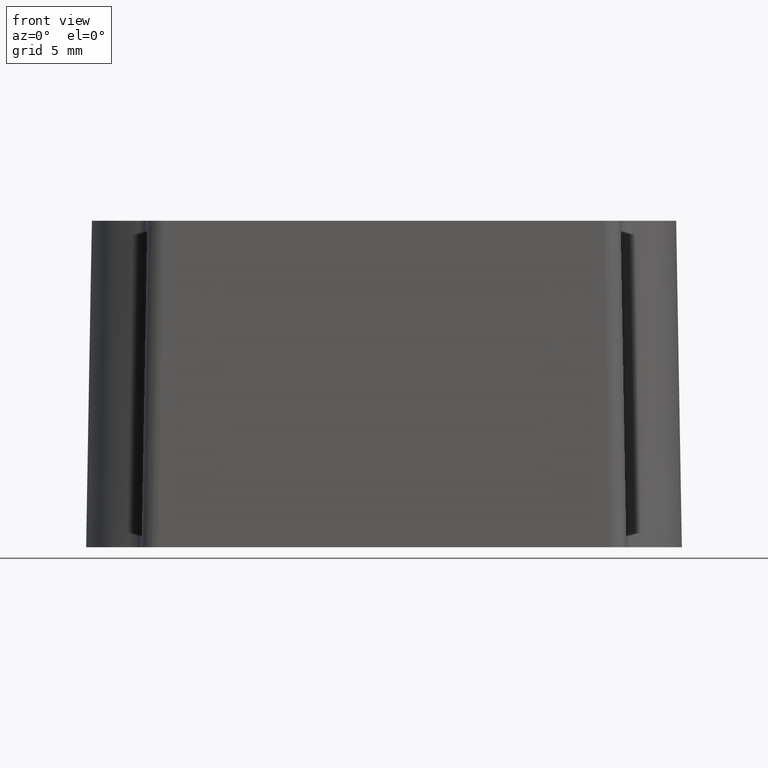
[diagram: clean part render]
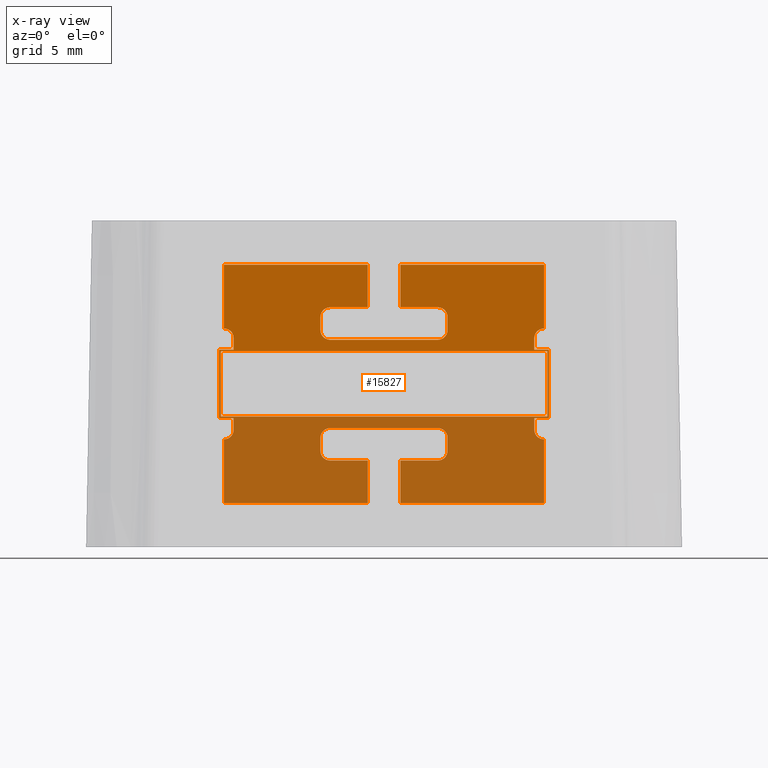
[diagram: x-ray — body ghosted, one internal face saturated and labeled with its STEP entity id]
A machine part, front view, then the same camera in x-ray: the body is ghosted and one INTERNAL B-rep face — a face not visible from any outside direction — is saturated and labeled: STEP entity #15827.
In plain terms, the highlighted planar face has unit normal (-0, -1, 0).
Its self-contained STEP definition (entity closure, byte-faithful):
#3564 = LINE ( 'NONE', #3610, #12898 ) ;
#3578 = LINE ( 'NONE', #3608, #12900 ) ;
#3579 = LINE ( 'NONE', #3606, #12909 ) ;
#3606 = CARTESIAN_POINT ( 'NONE',  ( 0.9948091789348029200, -7.750885740456789500, 1.394467274512204600 ) ) ;
#3607 = DIRECTION ( 'NONE',  ( 8.223640623691263700E-016, -0.9998476951563911600, -0.01745240643728354600 ) ) ;
#3608 = CARTESIAN_POINT ( 'NONE',  ( 3.894809178934796300, -7.750885740456802800, 1.394467274512214900 ) ) ;
#3609 = DIRECTION ( 'NONE',  ( -2.289834988289384900E-016, -0.9998476951563911600, -0.01745240643728354600 ) ) ;
#3610 = CARTESIAN_POINT ( 'NONE',  ( -10.09999999999991100, -2.856822064668583100, 1.479893473735876400 ) ) ;
#3611 = CARTESIAN_POINT ( 'NONE',  ( -10.09999999999990900, -4.846137394025159800, 1.445169845499260500 ) ) ;
#3612 = DIRECTION ( 'NONE',  ( 1.000000000000000000, 4.047862640411460800E-016, 3.636660784803152500E-015 ) ) ;
#3613 = LINE ( 'NONE', #3611, #12914 ) ;
#3614 = CARTESIAN_POINT ( 'NONE',  ( 1.000000000000093700, -4.851327424503257800, 1.445079253180325800 ) ) ;
#3615 = DIRECTION ( 'NONE',  ( -3.607484137458478000E-015, -0.01745240643728351500, 0.9998476951563912700 ) ) ;
#3616 = DIRECTION ( 'NONE',  ( 1.000000000000000000, 0.0000000000000000000, 0.0000000000000000000 ) ) ;
#3617 = DIRECTION ( 'NONE',  ( -1.000000000000000000, -5.141102439653392500E-016, -3.638569041970940200E-015 ) ) ;
#3620 = CARTESIAN_POINT ( 'NONE',  ( 3.300000000000094000, -4.251418807409423000, 1.455550697042704800 ) ) ;
#3621 = DIRECTION ( 'NONE',  ( 3.607484137458478000E-015, 0.01745240643728351500, -0.9998476951563912700 ) ) ;
#3622 = DIRECTION ( 'NONE',  ( 1.000000000000000000, 0.0000000000000000000, 3.645546205010808300E-015 ) ) ;
#3625 = CARTESIAN_POINT ( 'NONE',  ( -3.299999999999909200, 3.147454136747863900, 1.584698504678582600 ) ) ;
#3626 = DIRECTION ( 'NONE',  ( 3.607484137458478000E-015, 0.01745240643728351500, -0.9998476951563912700 ) ) ;
#3627 = DIRECTION ( 'NONE',  ( 1.000000000000000000, 7.291092410021594900E-016, 3.645546205010797300E-015 ) ) ;
#3628 = LINE ( 'NONE', #3636, #12930 ) ;
#3631 = LINE ( 'NONE', #3639, #12929 ) ;
#3636 = CARTESIAN_POINT ( 'NONE',  ( -9.999999999999998200, 1.847652133044552800, 1.562010376310083000 ) ) ;
#3638 = DIRECTION ( 'NONE',  ( -1.000000000000000000, 1.873501354054951200E-016, -1.907057520180671700E-016 ) ) ;
#3639 = CARTESIAN_POINT ( 'NONE',  ( 9.807752938723588400, -3.551434057030681500, 1.467768976309354000 ) ) ;
#3640 = DIRECTION ( 'NONE',  ( 2.289834988289384900E-016, 0.9998476951563911600, 0.01745240643728354600 ) ) ;
#3641 = LINE ( 'NONE', #3642, #12938 ) ;
#3642 = CARTESIAN_POINT ( 'NONE',  ( -10.09999999999990500, 2.552735550132132900, 1.574317653135159300 ) ) ;
#3643 = DIRECTION ( 'NONE',  ( -1.000000000000000000, 2.423957702401214500E-016, -3.625364180374396800E-015 ) ) ;
#3644 = LINE ( 'NONE', #3646, #12939 ) ;
#3646 = CARTESIAN_POINT ( 'NONE',  ( -10.09999999999991300, -3.546335390321863700, 1.467857973867729100 ) ) ;
#3647 = DIRECTION ( 'NONE',  ( -1.000000000000000000, -1.051549342586716100E-015, -3.647950076332339200E-015 ) ) ;
#3656 = CARTESIAN_POINT ( 'NONE',  ( 9.800102802507421300, -7.458683189823259100, 1.399567689005738700 ) ) ;
#3657 = CARTESIAN_POINT ( 'NONE',  ( 3.300000000000092200, 3.947332292872975500, 1.598660429828428200 ) ) ;
#3658 = DIRECTION ( 'NONE',  ( 3.607484137458478000E-015, 0.01745240643728351500, -0.9998476951563912700 ) ) ;
#3659 = DIRECTION ( 'NONE',  ( 1.000000000000000000, 0.0000000000000000000, 3.645546205010797300E-015 ) ) ;
#3663 = LINE ( 'NONE', #3656, #12942 ) ;
#3664 = CARTESIAN_POINT ( 'NONE',  ( 9.800000000000091300, -2.951616803706111000, 1.478238825411200900 ) ) ;
#3665 = DIRECTION ( 'NONE',  ( 3.607484137458478000E-015, 0.01745240643728351500, -0.9998476951563912700 ) ) ;
#3666 = DIRECTION ( 'NONE',  ( 1.000000000000000000, 0.0000000000000000000, 3.645546205010794900E-015 ) ) ;
#3667 = DIRECTION ( 'NONE',  ( 1.000000000000000000, -1.185043464242148100E-016, 3.627526713221152400E-015 ) ) ;
#3668 = LINE ( 'NONE', #3669, #12955 ) ;
#3669 = CARTESIAN_POINT ( 'NONE',  ( -10.00000000000000000, -2.151738647581012300, 1.492200750560948700 ) ) ;
#3670 = DIRECTION ( 'NONE',  ( 2.289834988289384900E-016, 0.9998476951563911600, 0.01745240643728354600 ) ) ;
#3671 = CARTESIAN_POINT ( 'NONE',  ( 3.300000000000092200, 3.147454136747862100, 1.584698504678603500 ) ) ;
#3672 = DIRECTION ( 'NONE',  ( 3.607484137458478000E-015, 0.01745240643728351500, -0.9998476951563912700 ) ) ;
#3673 = DIRECTION ( 'NONE',  ( 1.000000000000000000, 0.0000000000000000000, 3.645546205010797300E-015 ) ) ;
#3675 = LINE ( 'NONE', #3677, #12962 ) ;
#3676 = CARTESIAN_POINT ( 'NONE',  ( -10.00000000000000000, -2.151738647581012300, 1.492200750560948700 ) ) ;
#3677 = CARTESIAN_POINT ( 'NONE',  ( 9.205190821065386300, -7.750885740456803700, 1.394467274512235700 ) ) ;
#3678 = DIRECTION ( 'NONE',  ( 2.289834988289384900E-016, 0.9998476951563911600, 0.01745240643728354600 ) ) ;
#3679 = LINE ( 'NONE', #3680, #12973 ) ;
#3680 = CARTESIAN_POINT ( 'NONE',  ( -10.09999999999990500, 3.242248875785402000, 1.586353153003306600 ) ) ;
#3681 = LINE ( 'NONE', #3676, #12966 ) ;
#3682 = CARTESIAN_POINT ( 'NONE',  ( 1.000000000000092400, 4.547240909966811600, 1.609131873690793100 ) ) ;
#3683 = DIRECTION ( 'NONE',  ( -3.607484137458478000E-015, -0.01745240643728351500, 0.9998476951563912700 ) ) ;
#3684 = DIRECTION ( 'NONE',  ( 1.000000000000000000, 0.0000000000000000000, 0.0000000000000000000 ) ) ;
#3685 = DIRECTION ( 'NONE',  ( -1.000000000000000000, 1.873501354054951200E-016, -1.907057520180671700E-016 ) ) ;
#3686 = LINE ( 'NONE', #3687, #12969 ) ;
#3687 = CARTESIAN_POINT ( 'NONE',  ( -9.807752938723403700, 3.247347542494239700, 1.586442150561757900 ) ) ;
#3688 = DIRECTION ( 'NONE',  ( -7.304098846216862700E-019, -0.9998476951563911600, -0.01745240643728354600 ) ) ;
#3689 = LINE ( 'NONE', #3690, #12970 ) ;
#3690 = CARTESIAN_POINT ( 'NONE',  ( -10.49999999999991100, 1.947636902560195800, 1.563755616953814500 ) ) ;
#3691 = DIRECTION ( 'NONE',  ( 1.000000000000000000, -2.479003337235839900E-016, 3.659624290396251300E-015 ) ) ;
#3692 = LINE ( 'NONE', #3693, #12971 ) ;
#3693 = CARTESIAN_POINT ( 'NONE',  ( -9.800102802507241900, 7.154596675286810200, 1.654643437865373200 ) ) ;
#3694 = DIRECTION ( 'NONE',  ( -1.000000000000000000, 7.557218629577190500E-017, -3.628276096863703400E-015 ) ) ;
#3695 = CARTESIAN_POINT ( 'NONE',  ( -0.9999999999999080700, 4.547240909966813400, 1.609131873690786000 ) ) ;
#3696 = DIRECTION ( 'NONE',  ( -3.607484137458478000E-015, -0.01745240643728351500, 0.9998476951563912700 ) ) ;
#3697 = DIRECTION ( 'NONE',  ( 1.000000000000000000, 0.0000000000000000000, 0.0000000000000000000 ) ) ;
#3698 = CARTESIAN_POINT ( 'NONE',  ( -10.09999999999990900, 7.446799225920350400, 1.659743852358872800 ) ) ;
#3699 = DIRECTION ( 'NONE',  ( 1.000000000000000000, -3.072515182135921200E-016, 3.624232119082551400E-015 ) ) ;
#3701 = LINE ( 'NONE', #3698, #12980 ) ;
#3702 = CARTESIAN_POINT ( 'NONE',  ( -9.799999999999910100, 2.647530289169669300, 1.575972301459911000 ) ) ;
#3703 = DIRECTION ( 'NONE',  ( 3.607484137458478000E-015, 0.01745240643728351500, -0.9998476951563912700 ) ) ;
#3704 = DIRECTION ( 'NONE',  ( 1.000000000000000000, 0.0000000000000000000, 3.645546205010794900E-015 ) ) ;
#3705 = DIRECTION ( 'NONE',  ( -7.304098846217356700E-019, -0.9998476951563911600, -0.01745240643728354600 ) ) ;
#3706 = LINE ( 'NONE', #3707, #12983 ) ;
#3707 = CARTESIAN_POINT ( 'NONE',  ( -0.9948091789346177300, -7.750885740456801000, 1.394467274512197500 ) ) ;
#3708 = DIRECTION ( 'NONE',  ( 2.618381101163780600E-016, 0.9998476951563911600, 0.01745240643728354600 ) ) ;
#3712 = LINE ( 'NONE', #3714, #12984 ) ;
#3714 = CARTESIAN_POINT ( 'NONE',  ( -10.09999999999990500, 4.542050879488711800, 1.609041281371775200 ) ) ;
#3715 = DIRECTION ( 'NONE',  ( 1.000000000000000000, -2.545991718500363400E-016, 3.625151169206951000E-015 ) ) ;
#3716 = CARTESIAN_POINT ( 'NONE',  ( -3.894809178934619100, -7.750885740456800100, 1.394467274512187300 ) ) ;
#3717 = CARTESIAN_POINT ( 'NONE',  ( 3.300000000000094400, -3.451540651284309600, 1.469512622192529400 ) ) ;
#3718 = DIRECTION ( 'NONE',  ( 3.607484137458478000E-015, 0.01745240643728351500, -0.9998476951563912700 ) ) ;
#3719 = DIRECTION ( 'NONE',  ( 1.000000000000000000, 0.0000000000000000000, 3.645546205010808300E-015 ) ) ;
#3721 = LINE ( 'NONE', #3716, #12986 ) ;
#3722 = CARTESIAN_POINT ( 'NONE',  ( -3.299999999999909200, 3.947332292872977300, 1.598660429828407300 ) ) ;
#3723 = DIRECTION ( 'NONE',  ( 3.607484137458478000E-015, 0.01745240643728351500, -0.9998476951563912700 ) ) ;
#3724 = DIRECTION ( 'NONE',  ( 1.000000000000000000, 0.0000000000000000000, 3.645546205010797300E-015 ) ) ;
#3725 = DIRECTION ( 'NONE',  ( 2.289834988289384900E-016, 0.9998476951563911600, 0.01745240643728354600 ) ) ;
#3726 = LINE ( 'NONE', #3727, #12997 ) ;
#3727 = CARTESIAN_POINT ( 'NONE',  ( 10.00000000000000500, -2.151738647581015900, 1.492200750560952500 ) ) ;
#3728 = DIRECTION ( 'NONE',  ( 2.289834988289384900E-016, 0.9998476951563911600, 0.01745240643728354600 ) ) ;
#3732 = CARTESIAN_POINT ( 'NONE',  ( -9.807752938723405500, -7.451034218759892800, 1.399701202292207100 ) ) ;
#3741 = LINE ( 'NONE', #3742, #13001 ) ;
#3742 = CARTESIAN_POINT ( 'NONE',  ( -10.49999999999991100, -2.251723417096646300, 1.490455509917221200 ) ) ;
#3743 = DIRECTION ( 'NONE',  ( -1.000000000000000000, 2.479003337235839900E-016, -3.659624290396251300E-015 ) ) ;
#3744 = LINE ( 'NONE', #3754, #13002 ) ;
#3745 = LINE ( 'NONE', #3756, #13005 ) ;
#3746 = LINE ( 'NONE', #3732, #12991 ) ;
#3747 = CARTESIAN_POINT ( 'NONE',  ( -3.299999999999907000, -3.451540651284312300, 1.469512622192508600 ) ) ;
#3748 = DIRECTION ( 'NONE',  ( 3.607484137458478000E-015, 0.01745240643728351500, -0.9998476951563912700 ) ) ;
#3749 = DIRECTION ( 'NONE',  ( 1.000000000000000000, 7.291092410021594900E-016, 3.645546205010797300E-015 ) ) ;
#3750 = DIRECTION ( 'NONE',  ( -7.304098846216862700E-019, -0.9998476951563911600, -0.01745240643728354600 ) ) ;
#3751 = LINE ( 'NONE', #3752, #13004 ) ;
#3752 = CARTESIAN_POINT ( 'NONE',  ( -9.205190821065203400, -7.750885740456799200, 1.394467274512166500 ) ) ;
#3753 = DIRECTION ( 'NONE',  ( -2.289834988289384900E-016, -0.9998476951563911600, -0.01745240643728354600 ) ) ;
#3754 = CARTESIAN_POINT ( 'NONE',  ( -0.9948091789346107400, -7.750885740456790400, 1.394467274512197500 ) ) ;
#3755 = DIRECTION ( 'NONE',  ( -8.552186736565646200E-016, 0.9998476951563911600, 0.01745240643728354600 ) ) ;
#3756 = CARTESIAN_POINT ( 'NONE',  ( -10.09999999999990700, -3.546335390321851300, 1.467857973867729100 ) ) ;
#3757 = DIRECTION ( 'NONE',  ( -1.000000000000000000, 1.873501354054950200E-016, -3.626325005504450500E-015 ) ) ;
#3759 = CARTESIAN_POINT ( 'NONE',  ( -9.799999999999910100, -2.951616803706119900, 1.478238825411124700 ) ) ;
#3760 = DIRECTION ( 'NONE',  ( 3.607484137458478000E-015, 0.01745240643728351500, -0.9998476951563912700 ) ) ;
#3761 = DIRECTION ( 'NONE',  ( 1.000000000000000000, 0.0000000000000000000, 3.645546205010794900E-015 ) ) ;
#3762 = LINE ( 'NONE', #3770, #13007 ) ;
#3766 = LINE ( 'NONE', #3768, #13009 ) ;
#3768 = CARTESIAN_POINT ( 'NONE',  ( -9.205190821065205100, -7.750885740456799200, 1.394467274512166500 ) ) ;
#3769 = DIRECTION ( 'NONE',  ( -2.289834988289384900E-016, -0.9998476951563911600, -0.01745240643728354600 ) ) ;
#3770 = CARTESIAN_POINT ( 'NONE',  ( -0.9999086223133788500, -7.458683189823258200, 1.399567689005697200 ) ) ;
#3771 = DIRECTION ( 'NONE',  ( 1.000000000000000000, -1.185043464242148100E-016, 3.627526713221152400E-015 ) ) ;
#3772 = LINE ( 'NONE', #3773, #13022 ) ;
#3773 = CARTESIAN_POINT ( 'NONE',  ( -3.894809178934616000, -7.750885740456800100, 1.394467274512187300 ) ) ;
#3774 = DIRECTION ( 'NONE',  ( 2.289834988289384900E-016, 0.9998476951563911600, 0.01745240643728354600 ) ) ;
#3778 = LINE ( 'NONE', #3780, #13027 ) ;
#3780 = CARTESIAN_POINT ( 'NONE',  ( -10.09999999999990900, -4.846137394025160600, 1.445169845499260500 ) ) ;
#3781 = DIRECTION ( 'NONE',  ( -1.000000000000000000, -5.141102439653392500E-016, -3.638569041970940200E-015 ) ) ;
#3783 = CARTESIAN_POINT ( 'NONE',  ( -3.299999999999907500, -4.251418807409426600, 1.455550697042683900 ) ) ;
#3784 = DIRECTION ( 'NONE',  ( 3.607484137458478000E-015, 0.01745240643728351500, -0.9998476951563912700 ) ) ;
#3785 = DIRECTION ( 'NONE',  ( 1.000000000000000000, 0.0000000000000000000, 3.645546205010797300E-015 ) ) ;
#3788 = CARTESIAN_POINT ( 'NONE',  ( -0.9999999999999067400, -4.851327424503259600, 1.445079253180318900 ) ) ;
#3789 = DIRECTION ( 'NONE',  ( -3.607484137458478000E-015, -0.01745240643728351500, 0.9998476951563912700 ) ) ;
#3790 = DIRECTION ( 'NONE',  ( 1.000000000000000000, 0.0000000000000000000, 0.0000000000000000000 ) ) ;
#10455 = CARTESIAN_POINT ( 'NONE',  ( -10.00000000000000000, -2.151738647581132200, 1.492200750560948700 ) ) ;
#10486 = CARTESIAN_POINT ( 'NONE',  ( 9.205190821065388100, 1.947636902560190700, 1.563755616953887300 ) ) ;
#10495 = CARTESIAN_POINT ( 'NONE',  ( 9.205190821065386300, 2.647530289169662600, 1.575972301459983800 ) ) ;
#11875 = EDGE_CURVE ( 'NONE', #15681, #15683, #27634, .T. ) ;
#11882 = EDGE_CURVE ( 'NONE', #15683, #15685, #27658, .T. ) ;
#11886 = EDGE_CURVE ( 'NONE', #15687, #15688, #27669, .T. ) ;
#11937 = EDGE_CURVE ( 'NONE', #15690, #15692, #27921, .T. ) ;
#11970 = EDGE_CURVE ( 'NONE', #15680, #15681, #18385, .T. ) ;
#11986 = EDGE_CURVE ( 'NONE', #15678, #15680, #18456, .T. ) ;
#12064 = EDGE_CURVE ( 'NONE', #15959, #15881, #13363, .T. ) ;
#12065 = EDGE_CURVE ( 'NONE', #15959, #15960, #13335, .T. ) ;
#12067 = EDGE_CURVE ( 'NONE', #15816, #15826, #13382, .T. ) ;
#12077 = EDGE_CURVE ( 'NONE', #15816, #15881, #13724, .T. ) ;
#12081 = EDGE_CURVE ( 'NONE', #15960, #15678, #19036, .T. ) ;
#12644 = AXIS2_PLACEMENT_3D ( 'NONE', #26515, #26523, #26524 ) ;
#12898 = VECTOR ( 'NONE', #3612, 1000.000000000000000 ) ;
#12900 = VECTOR ( 'NONE', #3609, 1000.000000000000100 ) ;
#12909 = VECTOR ( 'NONE', #3607, 1000.000000000000100 ) ;
#12912 = CIRCLE ( 'NONE', #12918, 0.005190821065292981100 ) ;
#12914 = VECTOR ( 'NONE', #3617, 1000.000000000000000 ) ;
#12917 = CIRCLE ( 'NONE', #12923, 0.5948091789347050900 ) ;
#12918 = AXIS2_PLACEMENT_3D ( 'NONE', #3614, #3615, #3616 ) ;
#12919 = CIRCLE ( 'NONE', #12928, 0.5948091789347068600 ) ;
#12923 = AXIS2_PLACEMENT_3D ( 'NONE', #3620, #3621, #3622 ) ;
#12928 = AXIS2_PLACEMENT_3D ( 'NONE', #3625, #3626, #3627 ) ;
#12929 = VECTOR ( 'NONE', #3640, 1000.000000000000100 ) ;
#12930 = VECTOR ( 'NONE', #3638, 1000.000000000000000 ) ;
#12938 = VECTOR ( 'NONE', #3643, 1000.000000000000000 ) ;
#12939 = VECTOR ( 'NONE', #3647, 1000.000000000000000 ) ;
#12942 = VECTOR ( 'NONE', #3667, 1000.000000000000000 ) ;
#12944 = CIRCLE ( 'NONE', #12946, 0.5948091789347068600 ) ;
#12945 = CIRCLE ( 'NONE', #12953, 0.5948091789347073100 ) ;
#12946 = AXIS2_PLACEMENT_3D ( 'NONE', #3657, #3658, #3659 ) ;
#12950 = CIRCLE ( 'NONE', #12968, 0.005190821065292981100 ) ;
#12953 = AXIS2_PLACEMENT_3D ( 'NONE', #3664, #3665, #3666 ) ;
#12954 = CIRCLE ( 'NONE', #12956, 0.5948091789347068600 ) ;
#12955 = VECTOR ( 'NONE', #3670, 1000.000000000000100 ) ;
#12956 = AXIS2_PLACEMENT_3D ( 'NONE', #3671, #3672, #3673 ) ;
#12962 = VECTOR ( 'NONE', #3678, 1000.000000000000100 ) ;
#12966 = VECTOR ( 'NONE', #3685, 1000.000000000000000 ) ;
#12967 = CIRCLE ( 'NONE', #12982, 0.5948091789347073100 ) ;
#12968 = AXIS2_PLACEMENT_3D ( 'NONE', #3682, #3683, #3684 ) ;
#12969 = VECTOR ( 'NONE', #3688, 1000.000000000000100 ) ;
#12970 = VECTOR ( 'NONE', #3691, 1000.000000000000000 ) ;
#12971 = VECTOR ( 'NONE', #3694, 1000.000000000000000 ) ;
#12972 = CIRCLE ( 'NONE', #12974, 0.005190821065292981100 ) ;
#12973 = VECTOR ( 'NONE', #3699, 1000.000000000000000 ) ;
#12974 = AXIS2_PLACEMENT_3D ( 'NONE', #3695, #3696, #3697 ) ;
#12980 = VECTOR ( 'NONE', #3705, 1000.000000000000200 ) ;
#12981 = CIRCLE ( 'NONE', #12987, 0.5948091789347050900 ) ;
#12982 = AXIS2_PLACEMENT_3D ( 'NONE', #3702, #3703, #3704 ) ;
#12983 = VECTOR ( 'NONE', #3708, 1000.000000000000100 ) ;
#12984 = VECTOR ( 'NONE', #3715, 1000.000000000000000 ) ;
#12985 = CIRCLE ( 'NONE', #12992, 0.5948091789347068600 ) ;
#12986 = VECTOR ( 'NONE', #3725, 1000.000000000000100 ) ;
#12987 = AXIS2_PLACEMENT_3D ( 'NONE', #3717, #3718, #3719 ) ;
#12991 = VECTOR ( 'NONE', #3750, 1000.000000000000100 ) ;
#12992 = AXIS2_PLACEMENT_3D ( 'NONE', #3722, #3723, #3724 ) ;
#12997 = VECTOR ( 'NONE', #3728, 1000.000000000000100 ) ;
#13000 = CIRCLE ( 'NONE', #13003, 0.5948091789347068600 ) ;
#13001 = VECTOR ( 'NONE', #3743, 1000.000000000000000 ) ;
#13002 = VECTOR ( 'NONE', #3755, 1000.000000000000100 ) ;
#13003 = AXIS2_PLACEMENT_3D ( 'NONE', #3747, #3748, #3749 ) ;
#13004 = VECTOR ( 'NONE', #3753, 1000.000000000000100 ) ;
#13005 = VECTOR ( 'NONE', #3757, 1000.000000000000000 ) ;
#13006 = CIRCLE ( 'NONE', #13008, 0.5948091789347073100 ) ;
#13007 = VECTOR ( 'NONE', #3771, 1000.000000000000000 ) ;
#13008 = AXIS2_PLACEMENT_3D ( 'NONE', #3759, #3760, #3761 ) ;
#13009 = VECTOR ( 'NONE', #3769, 1000.000000000000100 ) ;
#13020 = CIRCLE ( 'NONE', #13029, 0.5948091789347068600 ) ;
#13022 = VECTOR ( 'NONE', #3774, 1000.000000000000100 ) ;
#13025 = CIRCLE ( 'NONE', #13033, 0.005190821065292981100 ) ;
#13027 = VECTOR ( 'NONE', #3781, 1000.000000000000000 ) ;
#13029 = AXIS2_PLACEMENT_3D ( 'NONE', #3783, #3784, #3785 ) ;
#13033 = AXIS2_PLACEMENT_3D ( 'NONE', #3788, #3789, #3790 ) ;
#13335 = LINE ( 'NONE', #13370, #18999 ) ;
#13363 = LINE ( 'NONE', #13366, #19005 ) ;
#13366 = CARTESIAN_POINT ( 'NONE',  ( 10.50000000000009400, 1.947636902560190700, 1.563755616953890600 ) ) ;
#13368 = DIRECTION ( 'NONE',  ( 1.000000000000000000, -2.479003337235839900E-016, 3.659624290396251300E-015 ) ) ;
#13370 = CARTESIAN_POINT ( 'NONE',  ( 9.205190821065386300, -7.750885740456803700, 1.394467274512235700 ) ) ;
#13375 = DIRECTION ( 'NONE',  ( 2.289834988289384900E-016, 0.9998476951563911600, 0.01745240643728354600 ) ) ;
#13382 = LINE ( 'NONE', #13386, #19007 ) ;
#13386 = CARTESIAN_POINT ( 'NONE',  ( 10.50000000000009200, -2.251723417096635600, 1.490455509917297600 ) ) ;
#13388 = DIRECTION ( 'NONE',  ( -1.000000000000000000, -1.486558935465508000E-015, -3.689899389555295800E-015 ) ) ;
#13724 = LINE ( 'NONE', #13730, #19023 ) ;
#13730 = CARTESIAN_POINT ( 'NONE',  ( 10.10000000000009400, 7.446799225920346800, 1.659743852358948900 ) ) ;
#13732 = DIRECTION ( 'NONE',  ( 2.289834988289384900E-016, 0.9998476951563911600, 0.01745240643728354600 ) ) ;
#13743 = CARTESIAN_POINT ( 'NONE',  ( 9.800000000000093100, 2.647530289169664400, 1.575972301459987300 ) ) ;
#13744 = DIRECTION ( 'NONE',  ( 3.607484137458478000E-015, 0.01745240643728351500, -0.9998476951563912700 ) ) ;
#13745 = DIRECTION ( 'NONE',  ( 1.000000000000000000, 0.0000000000000000000, 3.645546205010794900E-015 ) ) ;
#14031 = VERTEX_POINT ( 'NONE', #20384 ) ;
#14804 = VERTEX_POINT ( 'NONE', #20424 ) ;
#14858 = EDGE_LOOP ( 'NONE', ( #32921, #32941, #32942, #32877 ) ) ;
#15044 = EDGE_LOOP ( 'NONE', ( #32912, #32907, #32904, #32888, #32910, #32909, #32903, #32905, #32906, #32900, #32901, #32898, #32899, #32895, #32896, #32886, #32897, #32891, #32892, #32893, #32894, #32889, #32890, #32885, #32883, #32884, #32882, #32902, #32986, #32923, #32914, #32925, #32924, #32927, #32926, #32929, #32928, #32931, #32930, #32936, #32935, #32934, #32933, #32940, #32939, #32938, #32937, #32943, #32932, #32922, #32919, #32916 ) ) ;
#15678 = VERTEX_POINT ( 'NONE', #19809 ) ;
#15680 = VERTEX_POINT ( 'NONE', #19815 ) ;
#15681 = VERTEX_POINT ( 'NONE', #19822 ) ;
#15683 = VERTEX_POINT ( 'NONE', #19821 ) ;
#15685 = VERTEX_POINT ( 'NONE', #19828 ) ;
#15687 = VERTEX_POINT ( 'NONE', #19834 ) ;
#15688 = VERTEX_POINT ( 'NONE', #19841 ) ;
#15690 = VERTEX_POINT ( 'NONE', #19847 ) ;
#15692 = VERTEX_POINT ( 'NONE', #19852 ) ;
#15694 = VERTEX_POINT ( 'NONE', #19851 ) ;
#15695 = VERTEX_POINT ( 'NONE', #19859 ) ;
#15697 = VERTEX_POINT ( 'NONE', #19864 ) ;
#15699 = VERTEX_POINT ( 'NONE', #19863 ) ;
#15701 = VERTEX_POINT ( 'NONE', #19869 ) ;
#15702 = VERTEX_POINT ( 'NONE', #19882 ) ;
#15704 = VERTEX_POINT ( 'NONE', #19887 ) ;
#15706 = VERTEX_POINT ( 'NONE', #19893 ) ;
#15708 = VERTEX_POINT ( 'NONE', #19892 ) ;
#15709 = VERTEX_POINT ( 'NONE', #19900 ) ;
#15711 = VERTEX_POINT ( 'NONE', #19899 ) ;
#15713 = VERTEX_POINT ( 'NONE', #19912 ) ;
#15715 = VERTEX_POINT ( 'NONE', #19911 ) ;
#15716 = VERTEX_POINT ( 'NONE', #19919 ) ;
#15718 = VERTEX_POINT ( 'NONE', #19918 ) ;
#15720 = VERTEX_POINT ( 'NONE', #19930 ) ;
#15722 = VERTEX_POINT ( 'NONE', #19936 ) ;
#15725 = VERTEX_POINT ( 'NONE', #19935 ) ;
#15729 = VERTEX_POINT ( 'NONE', #19953 ) ;
#15732 = VERTEX_POINT ( 'NONE', #19960 ) ;
#15736 = VERTEX_POINT ( 'NONE', #19966 ) ;
#15737 = VERTEX_POINT ( 'NONE', #19972 ) ;
#15744 = VERTEX_POINT ( 'NONE', #19989 ) ;
#15747 = VERTEX_POINT ( 'NONE', #26335 ) ;
#15750 = VERTEX_POINT ( 'NONE', #26341 ) ;
#15752 = VERTEX_POINT ( 'NONE', #26334 ) ;
#15795 = VERTEX_POINT ( 'NONE', #26442 ) ;
#15805 = VERTEX_POINT ( 'NONE', #26468 ) ;
#15816 = VERTEX_POINT ( 'NONE', #26490 ) ;
#15827 = ADVANCED_FACE ( 'NONE', ( #26519, #26521 ), #26522, .F. ) ;
#15826 = VERTEX_POINT ( 'NONE', #26518 ) ;
#15835 = VERTEX_POINT ( 'NONE', #26541 ) ;
#15841 = VERTEX_POINT ( 'NONE', #26560 ) ;
#15842 = VERTEX_POINT ( 'NONE', #26566 ) ;
#15844 = VERTEX_POINT ( 'NONE', #26571 ) ;
#15846 = VERTEX_POINT ( 'NONE', #26570 ) ;
#15848 = VERTEX_POINT ( 'NONE', #26577 ) ;
#15849 = VERTEX_POINT ( 'NONE', #26584 ) ;
#15854 = VERTEX_POINT ( 'NONE', #26594 ) ;
#15855 = VERTEX_POINT ( 'NONE', #26600 ) ;
#15863 = VERTEX_POINT ( 'NONE', #26621 ) ;
#15881 = VERTEX_POINT ( 'NONE', #26657 ) ;
#15888 = VERTEX_POINT ( 'NONE', #26676 ) ;
#15948 = VERTEX_POINT ( 'NONE', #10455 ) ;
#15959 = VERTEX_POINT ( 'NONE', #10486 ) ;
#15960 = VERTEX_POINT ( 'NONE', #10495 ) ;
#18385 = LINE ( 'NONE', #18386, #19273 ) ;
#18386 = CARTESIAN_POINT ( 'NONE',  ( 9.807752938723590200, 7.146947704223442200, 1.654509924578905000 ) ) ;
#18387 = DIRECTION ( 'NONE',  ( 2.289834988289384900E-016, 0.9998476951563911600, 0.01745240643728354600 ) ) ;
#18456 = LINE ( 'NONE', #18457, #19345 ) ;
#18457 = CARTESIAN_POINT ( 'NONE',  ( -10.09999999999990500, 3.242248875785403800, 1.586353153003306600 ) ) ;
#18458 = DIRECTION ( 'NONE',  ( 1.000000000000000000, -3.072515182135921200E-016, 3.624232119082551400E-015 ) ) ;
#18999 = VECTOR ( 'NONE', #13375, 1000.000000000000100 ) ;
#19005 = VECTOR ( 'NONE', #13368, 1000.000000000000000 ) ;
#19007 = VECTOR ( 'NONE', #13388, 1000.000000000000000 ) ;
#19023 = VECTOR ( 'NONE', #13732, 1000.000000000000100 ) ;
#19030 = AXIS2_PLACEMENT_3D ( 'NONE', #13743, #13744, #13745 ) ;
#19036 = CIRCLE ( 'NONE', #19030, 0.5948091789347073100 ) ;
#19162 = VECTOR ( 'NONE', #27636, 1000.000000000000000 ) ;
#19220 = VECTOR ( 'NONE', #27663, 1000.000000000000100 ) ;
#19273 = VECTOR ( 'NONE', #18387, 1000.000000000000100 ) ;
#19345 = VECTOR ( 'NONE', #18458, 1000.000000000000000 ) ;
#19376 = VECTOR ( 'NONE', #27675, 1000.000000000000000 ) ;
#19493 = VECTOR ( 'NONE', #27923, 1000.000000000000100 ) ;
#19809 = CARTESIAN_POINT ( 'NONE',  ( 9.800000000000096600, 3.242248875785397100, 1.586353153003383000 ) ) ;
#19815 = CARTESIAN_POINT ( 'NONE',  ( 9.807752938723590200, 3.242248875785395300, 1.586353153003383000 ) ) ;
#19821 = CARTESIAN_POINT ( 'NONE',  ( 0.9948091789347998100, 7.154596675286806700, 1.654643437865414900 ) ) ;
#19822 = CARTESIAN_POINT ( 'NONE',  ( 9.807752938723590200, 7.154596675286806700, 1.654643437865449500 ) ) ;
#19828 = CARTESIAN_POINT ( 'NONE',  ( 0.9948091789347993700, 4.547240909966813400, 1.609131873690793100 ) ) ;
#19834 = CARTESIAN_POINT ( 'NONE',  ( 1.000000000000092400, 4.542050879488708200, 1.609041281371816700 ) ) ;
#19841 = CARTESIAN_POINT ( 'NONE',  ( 3.300000000000090400, 4.542050879488708200, 1.609041281371823800 ) ) ;
#19847 = CARTESIAN_POINT ( 'NONE',  ( 3.894809178934799400, 3.947332292872971900, 1.598660429828431500 ) ) ;
#19851 = CARTESIAN_POINT ( 'NONE',  ( 3.300000000000088200, 2.552735550132129400, 1.574317653135207900 ) ) ;
#19852 = CARTESIAN_POINT ( 'NONE',  ( 3.894809178934799800, 3.147454136747863900, 1.584698504678606800 ) ) ;
#19859 = CARTESIAN_POINT ( 'NONE',  ( -3.299999999999907000, 2.552735550132131200, 1.574317653135187000 ) ) ;
#19863 = CARTESIAN_POINT ( 'NONE',  ( -3.894809178934616000, 3.947332292872975500, 1.598660429828403700 ) ) ;
#19864 = CARTESIAN_POINT ( 'NONE',  ( -3.894809178934616400, 3.147454136747867400, 1.584698504678579100 ) ) ;
#19869 = CARTESIAN_POINT ( 'NONE',  ( -3.299999999999904800, 4.542050879488710000, 1.609041281371802900 ) ) ;
#19882 = CARTESIAN_POINT ( 'NONE',  ( -0.9999999999999105200, 4.542050879488710000, 1.609041281371809800 ) ) ;
#19887 = CARTESIAN_POINT ( 'NONE',  ( -0.9948091789346150700, 4.547240909966813400, 1.609131873690786000 ) ) ;
#19892 = CARTESIAN_POINT ( 'NONE',  ( -9.205190821065201600, 1.947636902560195800, 1.563755616953817800 ) ) ;
#19893 = CARTESIAN_POINT ( 'NONE',  ( -0.9948091789346136200, 7.154596675286806700, 1.654643437865408000 ) ) ;
#19899 = CARTESIAN_POINT ( 'NONE',  ( -10.09999999999990900, -2.251723417096646300, 1.490455509917221200 ) ) ;
#19900 = CARTESIAN_POINT ( 'NONE',  ( -9.807752938723403700, 3.242248875785400700, 1.586353153003306600 ) ) ;
#19911 = CARTESIAN_POINT ( 'NONE',  ( -9.205190821065203400, -2.951616803706118100, 1.478238825411128100 ) ) ;
#19912 = CARTESIAN_POINT ( 'NONE',  ( -9.205190821065203400, 2.647530289169667900, 1.575972301459914500 ) ) ;
#19918 = CARTESIAN_POINT ( 'NONE',  ( -9.807752938723405500, -3.546335390321849100, 1.467857973867729100 ) ) ;
#19919 = CARTESIAN_POINT ( 'NONE',  ( -9.799999999999913700, -3.546335390321851300, 1.467857973867729100 ) ) ;
#19930 = CARTESIAN_POINT ( 'NONE',  ( -9.205190821065201600, -2.251723417096646300, 1.490455509917224800 ) ) ;
#19935 = CARTESIAN_POINT ( 'NONE',  ( 9.807752938723588400, -3.546335390321842000, 1.467857973867805300 ) ) ;
#19936 = CARTESIAN_POINT ( 'NONE',  ( -0.9999999999999087400, -4.846137394025157100, 1.445169845499295200 ) ) ;
#19953 = CARTESIAN_POINT ( 'NONE',  ( -9.799999999999913700, 3.242248875785402000, 1.586353153003306600 ) ) ;
#19960 = CARTESIAN_POINT ( 'NONE',  ( -10.09999999999990700, 1.947636902560197600, 1.563755616953814500 ) ) ;
#19966 = CARTESIAN_POINT ( 'NONE',  ( 0.9948091789348007000, -4.851327424503261400, 1.445079253180325800 ) ) ;
#19972 = CARTESIAN_POINT ( 'NONE',  ( 3.300000000000091700, -4.846137394025153500, 1.445169845499309200 ) ) ;
#19989 = CARTESIAN_POINT ( 'NONE',  ( -3.894809178934614600, -3.451540651284315900, 1.469512622192505000 ) ) ;
#20384 = CARTESIAN_POINT ( 'NONE',  ( 0.9948091789348029200, -7.458683189823258200, 1.399567689005704100 ) ) ;
#20424 = CARTESIAN_POINT ( 'NONE',  ( -9.807752938723405500, 7.154596675286810200, 1.654643437865373200 ) ) ;
#26334 = CARTESIAN_POINT ( 'NONE',  ( -0.9948091789346138500, -4.851327424503259600, 1.445079253180318900 ) ) ;
#26335 = CARTESIAN_POINT ( 'NONE',  ( 9.800000000000094900, -3.546335390321842900, 1.467857973867805300 ) ) ;
#26341 = CARTESIAN_POINT ( 'NONE',  ( 3.894809178934800300, -3.451540651284311400, 1.469512622192532800 ) ) ;
#26442 = CARTESIAN_POINT ( 'NONE',  ( -9.807752938723405500, -7.458683189823259100, 1.399567689005662500 ) ) ;
#26468 = CARTESIAN_POINT ( 'NONE',  ( 3.894809178934797600, -4.251418807409419500, 1.455550697042708100 ) ) ;
#26490 = CARTESIAN_POINT ( 'NONE',  ( 10.10000000000009200, -2.251723417096635600, 1.490455509917297600 ) ) ;
#26515 = CARTESIAN_POINT ( 'NONE',  ( -10.09999999999990900, -7.750885740456799200, 1.394467274512162900 ) ) ;
#26518 = CARTESIAN_POINT ( 'NONE',  ( 9.205190821065386300, -2.251723417096637400, 1.490455509917294000 ) ) ;
#26519 = FACE_OUTER_BOUND ( 'NONE', #15044, .T. ) ;
#26521 = FACE_BOUND ( 'NONE', #14858, .T. ) ;
#26522 = PLANE ( 'NONE',  #12644 ) ;
#26523 = DIRECTION ( 'NONE',  ( -3.629042409350789400E-015, -0.01745240643728351500, 0.9998476951563912700 ) ) ;
#26524 = DIRECTION ( 'NONE',  ( 1.000000000000000000, -2.473008268095435700E-016, 3.625278562293500900E-015 ) ) ;
#26541 = CARTESIAN_POINT ( 'NONE',  ( 10.00000000000000500, -2.151738647585050000, 1.492200750560952500 ) ) ;
#26560 = CARTESIAN_POINT ( 'NONE',  ( 9.205190821065384600, -2.951616803706108300, 1.478238825411197600 ) ) ;
#26566 = CARTESIAN_POINT ( 'NONE',  ( -3.299999999999904800, -2.856822064668580500, 1.479893473735904200 ) ) ;
#26570 = CARTESIAN_POINT ( 'NONE',  ( 9.807752938723586700, -7.458683189823259100, 1.399567689005738700 ) ) ;
#26571 = CARTESIAN_POINT ( 'NONE',  ( 3.300000000000090000, -2.856822064668577800, 1.479893473735925100 ) ) ;
#26577 = CARTESIAN_POINT ( 'NONE',  ( 10.00000000000000500, 1.847652133044547200, 1.562010376310156700 ) ) ;
#26584 = CARTESIAN_POINT ( 'NONE',  ( 1.000000000000093700, -4.846137394025155300, 1.445169845499302100 ) ) ;
#26594 = CARTESIAN_POINT ( 'NONE',  ( -3.894809178934614600, -4.251418807409424800, 1.455550697042680400 ) ) ;
#26600 = CARTESIAN_POINT ( 'NONE',  ( -3.299999999999903500, -4.846137394025157100, 1.445169845499288300 ) ) ;
#26621 = CARTESIAN_POINT ( 'NONE',  ( -0.9948091789346134000, -7.458683189823258200, 1.399567689005697200 ) ) ;
#26657 = CARTESIAN_POINT ( 'NONE',  ( 10.10000000000009400, 1.947636902560190700, 1.563755616953890600 ) ) ;
#26676 = CARTESIAN_POINT ( 'NONE',  ( -9.999999999999998200, 1.847652133044552800, 1.562010376310083000 ) ) ;
#27634 = LINE ( 'NONE', #27635, #19162 ) ;
#27635 = CARTESIAN_POINT ( 'NONE',  ( 0.9999086223135624800, 7.154596675286810200, 1.654643437865414900 ) ) ;
#27636 = DIRECTION ( 'NONE',  ( -1.000000000000000000, 7.557218629577190500E-017, -3.628276096863703400E-015 ) ) ;
#27653 = CARTESIAN_POINT ( 'NONE',  ( 0.9948091789347959200, -7.750885740456801000, 1.394467274512204600 ) ) ;
#27658 = LINE ( 'NONE', #27653, #19220 ) ;
#27663 = DIRECTION ( 'NONE',  ( -2.289834988289384900E-016, -0.9998476951563911600, -0.01745240643728354600 ) ) ;
#27669 = LINE ( 'NONE', #27674, #19376 ) ;
#27674 = CARTESIAN_POINT ( 'NONE',  ( -10.09999999999990500, 4.542050879488711800, 1.609041281371775200 ) ) ;
#27675 = DIRECTION ( 'NONE',  ( 1.000000000000000000, -2.545991718500363400E-016, 3.625151169206951000E-015 ) ) ;
#27921 = LINE ( 'NONE', #27922, #19493 ) ;
#27922 = CARTESIAN_POINT ( 'NONE',  ( 3.894809178934796300, -7.750885740456802800, 1.394467274512214900 ) ) ;
#27923 = DIRECTION ( 'NONE',  ( -2.289834988289384900E-016, -0.9998476951563911600, -0.01745240643728354600 ) ) ;
#29528 = EDGE_CURVE ( 'NONE', #15736, #14031, #3579, .T. ) ;
#29537 = EDGE_CURVE ( 'NONE', #15750, #15805, #3578, .T. ) ;
#29539 = EDGE_CURVE ( 'NONE', #15842, #15844, #3564, .T. ) ;
#29541 = EDGE_CURVE ( 'NONE', #15849, #15736, #12912, .T. ) ;
#29544 = EDGE_CURVE ( 'NONE', #15737, #15849, #3613, .T. ) ;
#29546 = EDGE_CURVE ( 'NONE', #15805, #15737, #12917, .T. ) ;
#29548 = EDGE_CURVE ( 'NONE', #15695, #15697, #12919, .T. ) ;
#29559 = EDGE_CURVE ( 'NONE', #15848, #15888, #3628, .T. ) ;
#29561 = EDGE_CURVE ( 'NONE', #15846, #15725, #3631, .T. ) ;
#29564 = EDGE_CURVE ( 'NONE', #15694, #15695, #3641, .T. ) ;
#29566 = EDGE_CURVE ( 'NONE', #15725, #15747, #3644, .T. ) ;
#29575 = EDGE_CURVE ( 'NONE', #15688, #15690, #12944, .T. ) ;
#29580 = EDGE_CURVE ( 'NONE', #15747, #15841, #12945, .T. ) ;
#29582 = EDGE_CURVE ( 'NONE', #14031, #15846, #3663, .T. ) ;
#29585 = EDGE_CURVE ( 'NONE', #15948, #15888, #3668, .T. ) ;
#29588 = EDGE_CURVE ( 'NONE', #15692, #15694, #12954, .T. ) ;
#29593 = EDGE_CURVE ( 'NONE', #15841, #15826, #3675, .T. ) ;
#29595 = EDGE_CURVE ( 'NONE', #15685, #15687, #12950, .T. ) ;
#29598 = EDGE_CURVE ( 'NONE', #15835, #15948, #3681, .T. ) ;
#29603 = EDGE_CURVE ( 'NONE', #14804, #15709, #3686, .T. ) ;
#29605 = EDGE_CURVE ( 'NONE', #15732, #15708, #3689, .T. ) ;
#29607 = EDGE_CURVE ( 'NONE', #15706, #14804, #3692, .T. ) ;
#29610 = EDGE_CURVE ( 'NONE', #15702, #15704, #12972, .T. ) ;
#29612 = EDGE_CURVE ( 'NONE', #15709, #15729, #3679, .T. ) ;
#29614 = EDGE_CURVE ( 'NONE', #15729, #15713, #12967, .T. ) ;
#29617 = EDGE_CURVE ( 'NONE', #15732, #15711, #3701, .T. ) ;
#29619 = EDGE_CURVE ( 'NONE', #15704, #15706, #3706, .T. ) ;
#29624 = EDGE_CURVE ( 'NONE', #15701, #15702, #3712, .T. ) ;
#29626 = EDGE_CURVE ( 'NONE', #15844, #15750, #12981, .T. ) ;
#29628 = EDGE_CURVE ( 'NONE', #15699, #15701, #12985, .T. ) ;
#29631 = EDGE_CURVE ( 'NONE', #15697, #15699, #3721, .T. ) ;
#29633 = EDGE_CURVE ( 'NONE', #15835, #15848, #3726, .T. ) ;
#29643 = EDGE_CURVE ( 'NONE', #15720, #15711, #3741, .T. ) ;
#29645 = EDGE_CURVE ( 'NONE', #15744, #15842, #13000, .T. ) ;
#29647 = EDGE_CURVE ( 'NONE', #15718, #15795, #3746, .T. ) ;
#29650 = EDGE_CURVE ( 'NONE', #15720, #15715, #3751, .T. ) ;
#29652 = EDGE_CURVE ( 'NONE', #15863, #15752, #3744, .T. ) ;
#29654 = EDGE_CURVE ( 'NONE', #15716, #15718, #3745, .T. ) ;
#29657 = EDGE_CURVE ( 'NONE', #15715, #15716, #13006, .T. ) ;
#29661 = EDGE_CURVE ( 'NONE', #15713, #15708, #3766, .T. ) ;
#29664 = EDGE_CURVE ( 'NONE', #15795, #15863, #3762, .T. ) ;
#29666 = EDGE_CURVE ( 'NONE', #15854, #15744, #3772, .T. ) ;
#29671 = EDGE_CURVE ( 'NONE', #15722, #15855, #3778, .T. ) ;
#29673 = EDGE_CURVE ( 'NONE', #15855, #15854, #13020, .T. ) ;
#29675 = EDGE_CURVE ( 'NONE', #15752, #15722, #13025, .T. ) ;
#32877 = ORIENTED_EDGE ( 'NONE', *, *, #29585, .F. ) ;
#32882 = ORIENTED_EDGE ( 'NONE', *, *, #29661, .F. ) ;
#32883 = ORIENTED_EDGE ( 'NONE', *, *, #29617, .F. ) ;
#32884 = ORIENTED_EDGE ( 'NONE', *, *, #29605, .T. ) ;
#32885 = ORIENTED_EDGE ( 'NONE', *, *, #29643, .T. ) ;
#32886 = ORIENTED_EDGE ( 'NONE', *, *, #29671, .F. ) ;
#32888 = ORIENTED_EDGE ( 'NONE', *, *, #29561, .F. ) ;
#32889 = ORIENTED_EDGE ( 'NONE', *, *, #29657, .F. ) ;
#32890 = ORIENTED_EDGE ( 'NONE', *, *, #29650, .F. ) ;
#32891 = ORIENTED_EDGE ( 'NONE', *, *, #29652, .F. ) ;
#32892 = ORIENTED_EDGE ( 'NONE', *, *, #29664, .F. ) ;
#32893 = ORIENTED_EDGE ( 'NONE', *, *, #29647, .F. ) ;
#32894 = ORIENTED_EDGE ( 'NONE', *, *, #29654, .F. ) ;
#32895 = ORIENTED_EDGE ( 'NONE', *, *, #29666, .F. ) ;
#32896 = ORIENTED_EDGE ( 'NONE', *, *, #29673, .F. ) ;
#32897 = ORIENTED_EDGE ( 'NONE', *, *, #29675, .F. ) ;
#32898 = ORIENTED_EDGE ( 'NONE', *, *, #29539, .F. ) ;
#32899 = ORIENTED_EDGE ( 'NONE', *, *, #29645, .F. ) ;
#32900 = ORIENTED_EDGE ( 'NONE', *, *, #29537, .F. ) ;
#32901 = ORIENTED_EDGE ( 'NONE', *, *, #29626, .F. ) ;
#32902 = ORIENTED_EDGE ( 'NONE', *, *, #29614, .F. ) ;
#32903 = ORIENTED_EDGE ( 'NONE', *, *, #29541, .F. ) ;
#32904 = ORIENTED_EDGE ( 'NONE', *, *, #29566, .F. ) ;
#32905 = ORIENTED_EDGE ( 'NONE', *, *, #29544, .F. ) ;
#32906 = ORIENTED_EDGE ( 'NONE', *, *, #29546, .F. ) ;
#32907 = ORIENTED_EDGE ( 'NONE', *, *, #29580, .F. ) ;
#32909 = ORIENTED_EDGE ( 'NONE', *, *, #29528, .F. ) ;
#32910 = ORIENTED_EDGE ( 'NONE', *, *, #29582, .F. ) ;
#32912 = ORIENTED_EDGE ( 'NONE', *, *, #29593, .F. ) ;
#32914 = ORIENTED_EDGE ( 'NONE', *, *, #29607, .F. ) ;
#32916 = ORIENTED_EDGE ( 'NONE', *, *, #12067, .T. ) ;
#32919 = ORIENTED_EDGE ( 'NONE', *, *, #12077, .F. ) ;
#32921 = ORIENTED_EDGE ( 'NONE', *, *, #29598, .F. ) ;
#32922 = ORIENTED_EDGE ( 'NONE', *, *, #12064, .T. ) ;
#32923 = ORIENTED_EDGE ( 'NONE', *, *, #29603, .F. ) ;
#32924 = ORIENTED_EDGE ( 'NONE', *, *, #29610, .F. ) ;
#32925 = ORIENTED_EDGE ( 'NONE', *, *, #29619, .F. ) ;
#32926 = ORIENTED_EDGE ( 'NONE', *, *, #29628, .F. ) ;
#32927 = ORIENTED_EDGE ( 'NONE', *, *, #29624, .F. ) ;
#32928 = ORIENTED_EDGE ( 'NONE', *, *, #29548, .F. ) ;
#32929 = ORIENTED_EDGE ( 'NONE', *, *, #29631, .F. ) ;
#32930 = ORIENTED_EDGE ( 'NONE', *, *, #29588, .F. ) ;
#32931 = ORIENTED_EDGE ( 'NONE', *, *, #29564, .F. ) ;
#32932 = ORIENTED_EDGE ( 'NONE', *, *, #12065, .F. ) ;
#32933 = ORIENTED_EDGE ( 'NONE', *, *, #29595, .F. ) ;
#32934 = ORIENTED_EDGE ( 'NONE', *, *, #11886, .F. ) ;
#32935 = ORIENTED_EDGE ( 'NONE', *, *, #29575, .F. ) ;
#32936 = ORIENTED_EDGE ( 'NONE', *, *, #11937, .F. ) ;
#32937 = ORIENTED_EDGE ( 'NONE', *, *, #11986, .F. ) ;
#32938 = ORIENTED_EDGE ( 'NONE', *, *, #11970, .F. ) ;
#32939 = ORIENTED_EDGE ( 'NONE', *, *, #11875, .F. ) ;
#32940 = ORIENTED_EDGE ( 'NONE', *, *, #11882, .F. ) ;
#32941 = ORIENTED_EDGE ( 'NONE', *, *, #29633, .T. ) ;
#32942 = ORIENTED_EDGE ( 'NONE', *, *, #29559, .T. ) ;
#32943 = ORIENTED_EDGE ( 'NONE', *, *, #12081, .F. ) ;
#32986 = ORIENTED_EDGE ( 'NONE', *, *, #29612, .F. ) ;